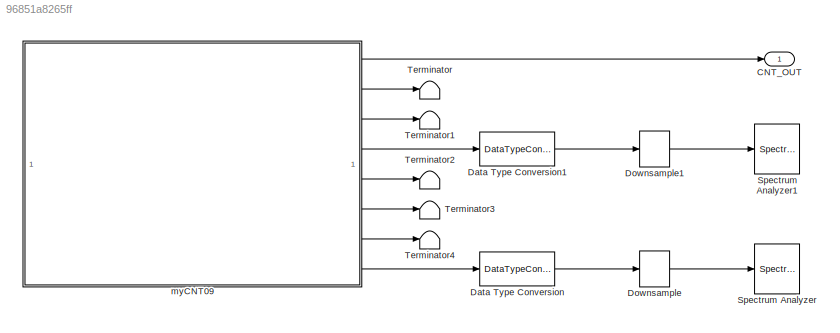
MODEL slx_96851a8265ff
KIND model
CONFIG AbsTol = auto
CONFIG EnableMultiTasking = off
CONFIG FixedStep = auto
CONFIG MaxStep = auto
CONFIG MinStep = auto
CONFIG RelTol = 1e-3
CONFIG SampleTimeConstraint = Unconstrained
CONFIG SolverName = VariableStepAuto
CONFIG StartTime = 0.0
CONFIG StopTime = 100000
BLOCK [Outport] CNT_OUT
  VectorParamsAs1DForOutWhenUnconnected = off
BLOCK [DataTypeConversion] Data Type Conversion
  LockScale = on
  RndMeth = Floor
  SaturateOnIntegerOverflow = off
BLOCK [DataTypeConversion] Data Type Conversion1
  LockScale = on
  RndMeth = Floor
  SaturateOnIntegerOverflow = off
BLOCK [DownSample] Downsample
  InputProcessing = Elements as channels (sample based)
  N = 64
  RateOptions = Allow multirate processing
BLOCK [DownSample] Downsample1
  InputProcessing = Elements as channels (sample based)
  N = 64
  RateOptions = Allow multirate processing
BLOCK [SpectrumAnalyzer] Spectrum Analyzer
  GraphicalSettings = {"GraphicalSettings":{"Style":{"BackgroundColor":[0.12941176470588237,0.12941176470588237,0.12941176470588237],"AxesColor":[0.07058823529411765,0.07058823529411765,0.07058823529411765],"LabelsColor":[0.8509803921568627,0.8509803921568627,0.8509803921568627],"PreserveColors":false,"Visible":[true],"LineStyle":["-"],"LineColor":[[1,1,0.06666666666666667]],"LineWidth":[1.5],"Marker":["none"],"FontSiz...<+929ch>
  ScopeFrameLocation = window
  Span = 0.03125
  StartFrequency = -0.015625
  StopFrequency = 0.015625
  WasSavedAsWebScope = on
  WindowPosition = [368.000000,182.000000,800.000000,500.000000,]
  YLimits = [-3603.44492261,-2802.67938425]
BLOCK [SpectrumAnalyzer] Spectrum Analyzer1
  GraphicalSettings = {"GraphicalSettings":{"Style":{"BackgroundColor":[0.12941176470588237,0.12941176470588237,0.12941176470588237],"AxesColor":[0.07058823529411765,0.07058823529411765,0.07058823529411765],"LabelsColor":[0.8509803921568627,0.8509803921568627,0.8509803921568627],"PreserveColors":false,"Visible":[true],"LineStyle":["-"],"LineColor":[[1,1,0.06666666666666667]],"LineWidth":[1.5],"Marker":["none"],"FontSiz...<+929ch>
  ScopeFrameLocation = window
  Span = 0.016666666666666666
  StartFrequency = -0.008333333333333333
  StopFrequency = 0.008333333333333333
  WasSavedAsWebScope = on
  WindowPosition = [235.000000,112.000000,800.000000,500.000000,]
  YLimits = [-3603.44492261,-2802.67938425]
BLOCK [Terminator] Terminator
BLOCK [Terminator] Terminator1
BLOCK [Terminator] Terminator2
BLOCK [Terminator] Terminator3
BLOCK [Terminator] Terminator4
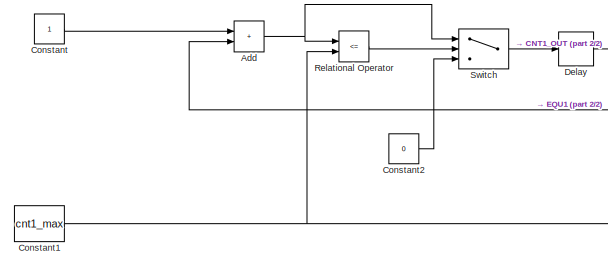
[diagram: myCNT09 - part 1/2, top left region]
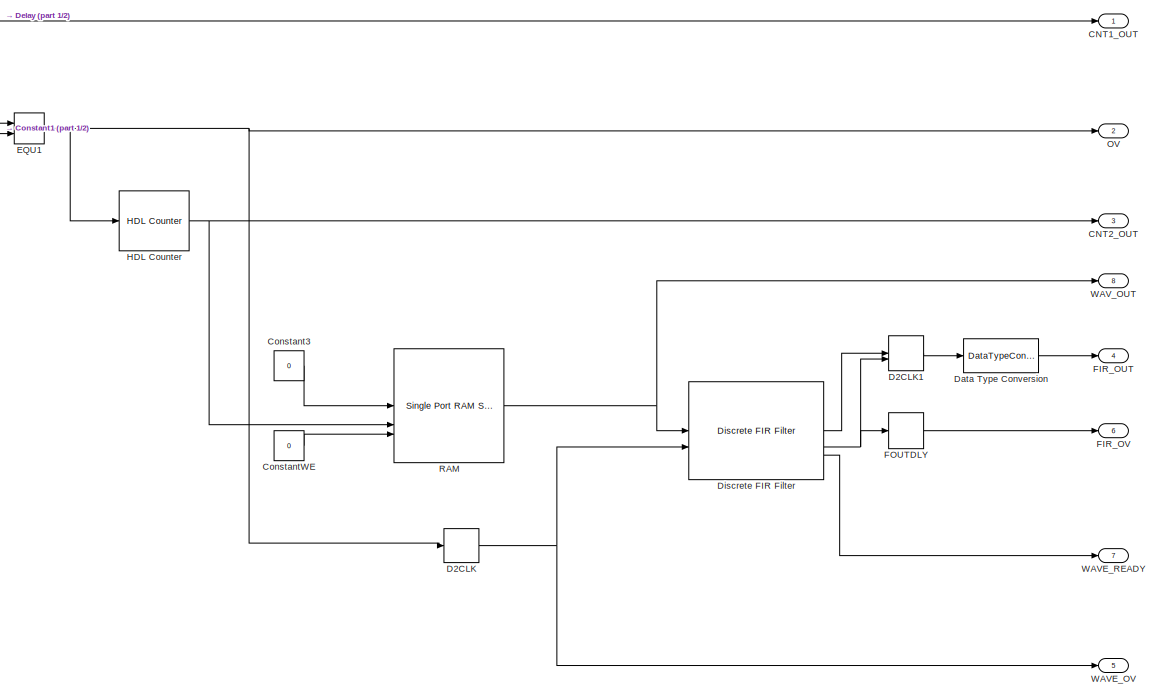
[diagram: myCNT09 - part 2/2, right side, full height]
BLOCK [SubSystem] myCNT09
BLOCK [Sum] myCNT09/Add
  AccumDataTypeStr = Inherit: Same as first input
  IconShape = rectangular
  OutDataTypeStr = uint8
BLOCK [Outport] myCNT09/CNT1_OUT
  OutDataTypeStr = uint8
  VectorParamsAs1DForOutWhenUnconnected = off
BLOCK [Outport] myCNT09/CNT2_OUT
  Port = 3
BLOCK [Constant] myCNT09/Constant
  OutDataTypeStr = uint8
  SampleTime = 1
BLOCK [Constant] myCNT09/Constant1
  OutDataTypeStr = uint8
  SampleTime = 1
  Value = cnt1_max
BLOCK [Constant] myCNT09/Constant2
  OutDataTypeStr = uint8
  SampleTime = 1
  Value = 0
BLOCK [Constant] myCNT09/Constant3
  OutDataTypeStr = fixdt(1,16,15)
  SampleTime = 1
  Value = 0
BLOCK [Constant] myCNT09/ConstantWE
  OutDataTypeStr = boolean
  SampleTime = 1
  Value = 0
BLOCK [Delay] myCNT09/D2CLK
  InitialCondition = 0
  InputPortMap = u0
BLOCK [Delay] myCNT09/D2CLK1
  DelayLength = 1
  InitialCondition = 0
  InputPortMap = u0,e6
  ShowEnablePort = on
BLOCK [DataTypeConversion] myCNT09/Data Type Conversion
  OutDataTypeStr = fixdt(1,16,14)
  RndMeth = Floor
  SaturateOnIntegerOverflow = off
BLOCK [Delay] myCNT09/Delay
  DelayLength = 1
  InitialCondition = 0
  InputPortMap = u0
BLOCK [Reference] myCNT09/Discrete FIR Filter  REF=dsphdlfiltering2/Discrete FIR Filter
  SourceBlock = dsphdlfiltering2/Discrete FIR Filter
  SourceType = Discrete FIR Filter
BLOCK [RelationalOperator] myCNT09/EQU1
  InputSameDT = off
  Operator = ==
BLOCK [Outport] myCNT09/FIR_OUT
  Port = 4
  VectorParamsAs1DForOutWhenUnconnected = off
BLOCK [Outport] myCNT09/FIR_OV
  Port = 6
  VectorParamsAs1DForOutWhenUnconnected = off
BLOCK [Delay] myCNT09/FOUTDLY
  DelayLength = 1
  InitialCondition = 0
  InputPortMap = u0
BLOCK [Reference] myCNT09/HDL Counter  REF=hdlsllib/Sources/HDL Counter
  SourceBlock = hdlsllib/Sources/HDL Counter
  SourceType = HDL Counter
BLOCK [Outport] myCNT09/OV
  Port = 2
  VectorParamsAs1DForOutWhenUnconnected = off
BLOCK [Reference] myCNT09/RAM  REF=hdlsllib/HDL RAMs/Single Port RAM System
  SourceBlock = hdlsllib/HDL RAMs/Single Port RAM System
  SourceType = hdl.RAM
BLOCK [RelationalOperator] myCNT09/Relational Operator
  InputSameDT = off
  Operator = <=
  OutDataTypeStr = boolean
BLOCK [Switch] myCNT09/Switch
  InputSameDT = off
  OutDataTypeStr = uint8
  SaturateOnIntegerOverflow = off
  Threshold = 1
BLOCK [Outport] myCNT09/WAVE_OV
  Port = 5
  VectorParamsAs1DForOutWhenUnconnected = off
BLOCK [Outport] myCNT09/WAVE_READY
  Port = 7
  VectorParamsAs1DForOutWhenUnconnected = off
BLOCK [Outport] myCNT09/WAV_OUT
  Port = 8
LINE Data Type Conversion1:1 -> Downsample1:1
LINE Data Type Conversion:1 -> Downsample:1
LINE Downsample1:1 -> Spectrum Analyzer1:1
LINE Downsample:1 -> Spectrum Analyzer:1
NET myCNT09/Add:1 -> myCNT09/Relational Operator:1, myCNT09/Switch:1
NET myCNT09/Constant1:1 -> myCNT09/EQU1:2, myCNT09/Relational Operator:2
LINE myCNT09/Constant2:1 -> myCNT09/Switch:3
LINE myCNT09/Constant3:1 -> myCNT09/RAM:1
LINE myCNT09/Constant:1 -> myCNT09/Add:1
LINE myCNT09/ConstantWE:1 -> myCNT09/RAM:3
LINE myCNT09/D2CLK1:1 -> myCNT09/Data Type Conversion:1
NET myCNT09/D2CLK:1 -> myCNT09/Discrete FIR Filter:2, myCNT09/WAVE_OV:1
LINE myCNT09/Data Type Conversion:1 -> myCNT09/FIR_OUT:1
NET myCNT09/Delay:1 -> myCNT09/Add:2, myCNT09/CNT1_OUT:1, myCNT09/EQU1:1
LINE myCNT09/Discrete FIR Filter:1 -> myCNT09/D2CLK1:1
NET myCNT09/Discrete FIR Filter:2 -> myCNT09/D2CLK1:2, myCNT09/FOUTDLY:1
LINE myCNT09/Discrete FIR Filter:3 -> myCNT09/WAVE_READY:1
NET myCNT09/EQU1:1 -> myCNT09/D2CLK:1, myCNT09/HDL Counter:1, myCNT09/OV:1
LINE myCNT09/FOUTDLY:1 -> myCNT09/FIR_OV:1
NET myCNT09/HDL Counter:1 -> myCNT09/CNT2_OUT:1, myCNT09/RAM:2
NET myCNT09/RAM:1 -> myCNT09/Discrete FIR Filter:1, myCNT09/WAV_OUT:1
LINE myCNT09/Relational Operator:1 -> myCNT09/Switch:2
LINE myCNT09/Switch:1 -> myCNT09/Delay:1
LINE myCNT09:1 -> CNT_OUT:1
LINE myCNT09:2 -> Terminator:1
LINE myCNT09:3 -> Terminator1:1
LINE myCNT09:4 -> Data Type Conversion1:1
LINE myCNT09:5 -> Terminator2:1
LINE myCNT09:6 -> Terminator3:1
LINE myCNT09:7 -> Terminator4:1
LINE myCNT09:8 -> Data Type Conversion:1
note: NET lines group one-source signal fan-out (src -> all destinations, sorted); 1:1 wires keep LINE
